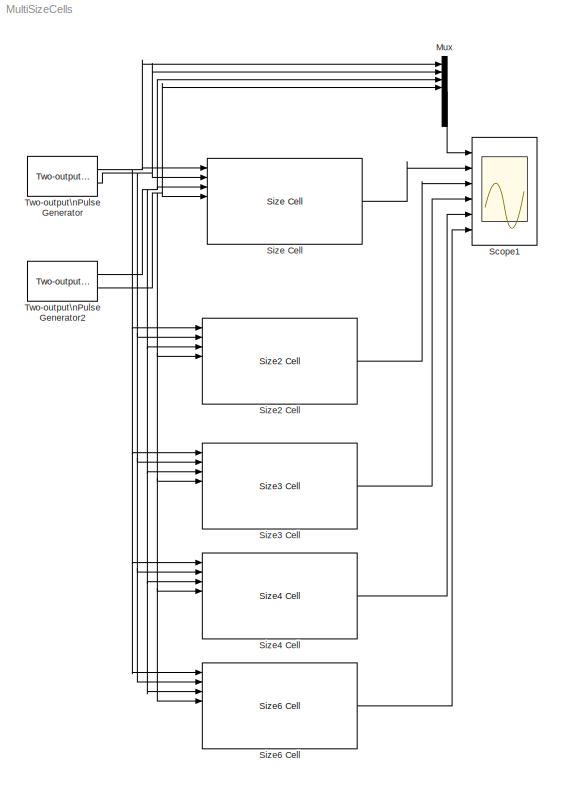
MODEL MultiSizeCells
KIND model
BLOCK [Mux] Mux
  DisplayOption = bar
  Inputs = 8
  Ports = [8, 1]
  SID = 1
BLOCK [Scope] Scope1
  Floating = off
  NumInputPorts = 6
  Ports = [6]
  SID = 2
  ScopeSpecificationString = Simulink.scopes.TimeScopeBlockCfg('CurrentConfiguration', extmgr.ConfigurationSet(extmgr.Configuration('Core','General UI',true,'FigureColor',[1 1 1]),extmgr.Configuration('Core','Source UI',true),extmgr.Configuration('Sources','WiredSimulink',true,'DataLoggingSaveFormat','StructureWithTime','DataLoggingMaxPoints','5000000','DataLoggingLimitDataPoints',true,'DataLoggingDecimation','1','DataLogging...<+5916ch>
BLOCK [Reference] Size Cell  REF=NeuroModelerLibrary/Sized Cells/Size Cell
  AllowZeroVariantControls = off
  AutoFrameSizeCalculation = off
  Latency = 0
  NameLocation = top
  Ports = [8, 3]
  PropagateVariantConditions = off
  RTWMemSecDataConstants = Inherit from model
  RTWMemSecDataInternal = Inherit from model
  RTWMemSecDataParameters = Inherit from model
  RTWMemSecFuncExecute = Inherit from model
  RTWMemSecFuncInitTerm = Inherit from model
  SID = 3
  ShowPortLabels = FromPortIcon
  SourceBlock = NeuroModelerLibrary/Sized Cells/Size Cell
  SourceType = SubSystem
  SystemSampleTime = -1
  VariantActivationTime = update diagram
BLOCK [Reference] Size2 Cell  REF=NeuroModelerLibrary/Sized Cells/Size2 Cell
  AllowZeroVariantControls = off
  AutoFrameSizeCalculation = off
  Latency = 0
  NameLocation = top
  Ports = [8, 3]
  PropagateVariantConditions = off
  RTWMemSecDataConstants = Inherit from model
  RTWMemSecDataInternal = Inherit from model
  RTWMemSecDataParameters = Inherit from model
  RTWMemSecFuncExecute = Inherit from model
  RTWMemSecFuncInitTerm = Inherit from model
  SID = 4
  ShowPortLabels = FromPortIcon
  SourceBlock = NeuroModelerLibrary/Sized Cells/Size2 Cell
  SourceType = SubSystem
  SystemSampleTime = -1
  VariantActivationTime = update diagram
BLOCK [Reference] Size3 Cell  REF=NeuroModelerLibrary/Sized Cells/Size3 Cell
  AllowZeroVariantControls = off
  AutoFrameSizeCalculation = off
  Latency = 0
  NameLocation = top
  Ports = [8, 3]
  PropagateVariantConditions = off
  RTWMemSecDataConstants = Inherit from model
  RTWMemSecDataInternal = Inherit from model
  RTWMemSecDataParameters = Inherit from model
  RTWMemSecFuncExecute = Inherit from model
  RTWMemSecFuncInitTerm = Inherit from model
  SID = 5
  ShowPortLabels = FromPortIcon
  SourceBlock = NeuroModelerLibrary/Sized Cells/Size3 Cell
  SourceType = SubSystem
  SystemSampleTime = -1
  VariantActivationTime = update diagram
BLOCK [Reference] Size4 Cell  REF=NeuroModelerLibrary/Sized Cells/Size4 Cell
  AllowZeroVariantControls = off
  AutoFrameSizeCalculation = off
  Latency = 0
  NameLocation = top
  Ports = [8, 3]
  PropagateVariantConditions = off
  RTWMemSecDataConstants = Inherit from model
  RTWMemSecDataInternal = Inherit from model
  RTWMemSecDataParameters = Inherit from model
  RTWMemSecFuncExecute = Inherit from model
  RTWMemSecFuncInitTerm = Inherit from model
  SID = 6
  ShowPortLabels = FromPortIcon
  SourceBlock = NeuroModelerLibrary/Sized Cells/Size4 Cell
  SourceType = SubSystem
  SystemSampleTime = -1
  VariantActivationTime = update diagram
BLOCK [Reference] Size6 Cell  REF=NeuroModelerLibrary/Sized Cells/Size6 Cell
  AllowZeroVariantControls = off
  AutoFrameSizeCalculation = off
  Latency = 0
  NameLocation = top
  Ports = [8, 3]
  PropagateVariantConditions = off
  RTWMemSecDataConstants = Inherit from model
  RTWMemSecDataInternal = Inherit from model
  RTWMemSecDataParameters = Inherit from model
  RTWMemSecFuncExecute = Inherit from model
  RTWMemSecFuncInitTerm = Inherit from model
  SID = 7
  ShowPortLabels = FromPortIcon
  SourceBlock = NeuroModelerLibrary/Sized Cells/Size6 Cell
  SourceType = SubSystem
  SystemSampleTime = -1
  VariantActivationTime = update diagram
BLOCK [Reference] Two-output\nPulse Generator  REF=NeuroModelerLibrary/Support/Two-output\nPulse Generator
  A = 1
  OOff1 = 0.6
  OOff2 = 0.9
  OOn1 = 0.5
  OOn2 = 0.8
  P1 = 200
  P2 = 200
  PW = 1
  Ports = [0, 2]
  RTWMemSecDataConstants = Inherit from model
  RTWMemSecDataInternal = Inherit from model
  RTWMemSecDataParameters = Inherit from model
  RTWMemSecFuncExecute = Inherit from model
  RTWMemSecFuncInitTerm = Inherit from model
  SID = 8
  ST = 0.001
  SourceBlock = NeuroModelerLibrary/Support/Two-output\nPulse Generator
BLOCK [Reference] Two-output\nPulse Generator2  REF=NeuroModelerLibrary/Support/Two-output\nPulse Generator
  A = 1
  OOff1 = 1.3
  OOff2 = 1.7
  OOn1 = 1.2
  OOn2 = 1.6
  P1 = 200
  P2 = 200
  PW = 1
  Ports = [0, 2]
  RTWMemSecDataConstants = Inherit from model
  RTWMemSecDataInternal = Inherit from model
  RTWMemSecDataParameters = Inherit from model
  RTWMemSecFuncExecute = Inherit from model
  RTWMemSecFuncInitTerm = Inherit from model
  SID = 9
  ST = 0.001
  SourceBlock = NeuroModelerLibrary/Support/Two-output\nPulse Generator
LINE Mux:1 -> Scope1:1
LINE Size Cell:2 -> Scope1:2
LINE Size2 Cell:2 -> Scope1:3
LINE Size3 Cell:2 -> Scope1:4
LINE Size4 Cell:2 -> Scope1:5
LINE Size6 Cell:2 -> Scope1:6
NET Two-output\nPulse Generator2:1 -> Mux:3, Size Cell:3, Size2 Cell:3, Size3 Cell:3, Size4 Cell:3, Size6 Cell:3
NET Two-output\nPulse Generator2:2 -> Mux:4, Size Cell:4, Size2 Cell:4, Size3 Cell:4, Size4 Cell:4, Size6 Cell:4
NET Two-output\nPulse Generator:1 -> Mux:1, Size Cell:1, Size2 Cell:1, Size3 Cell:1, Size4 Cell:1, Size6 Cell:1
NET Two-output\nPulse Generator:2 -> Mux:2, Size Cell:2, Size2 Cell:2, Size3 Cell:2, Size4 Cell:2, Size6 Cell:2
note: NET lines group one-source signal fan-out (src -> all destinations, sorted); 1:1 wires keep LINE
